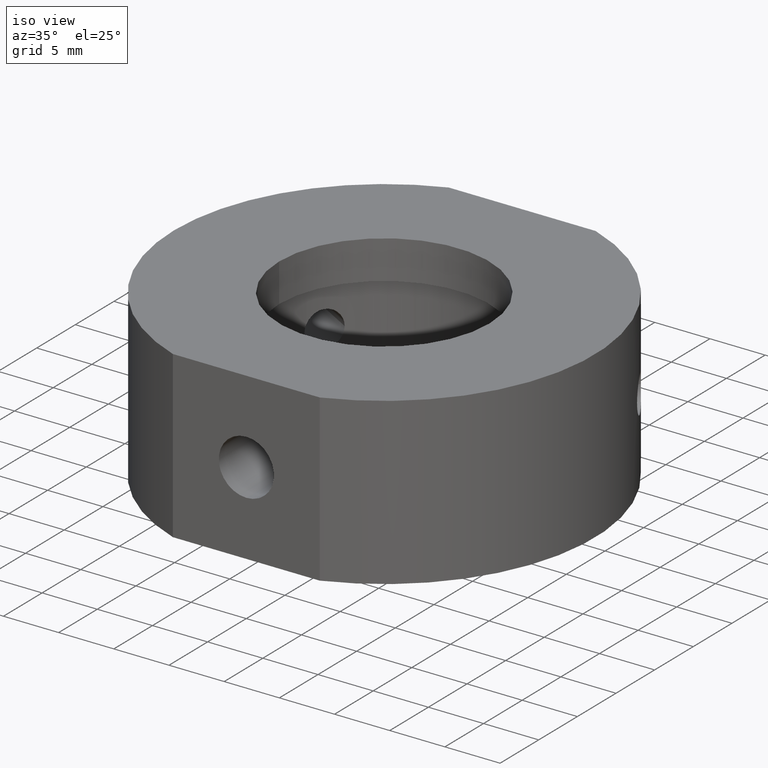
[diagram: clean part render]
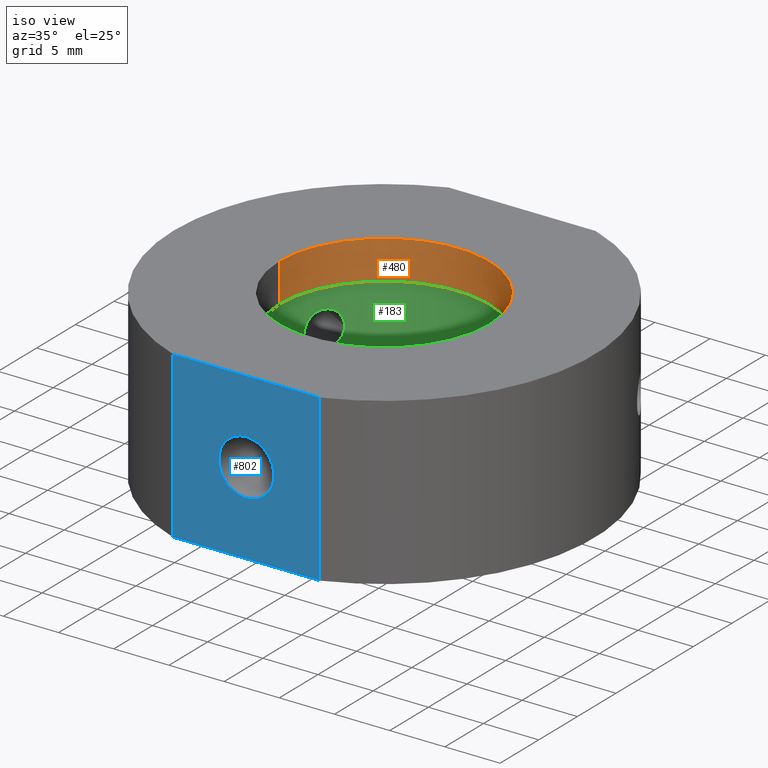
[diagram: same view with three faces highlighted in distinct colors, each labeled with its STEP entity id]
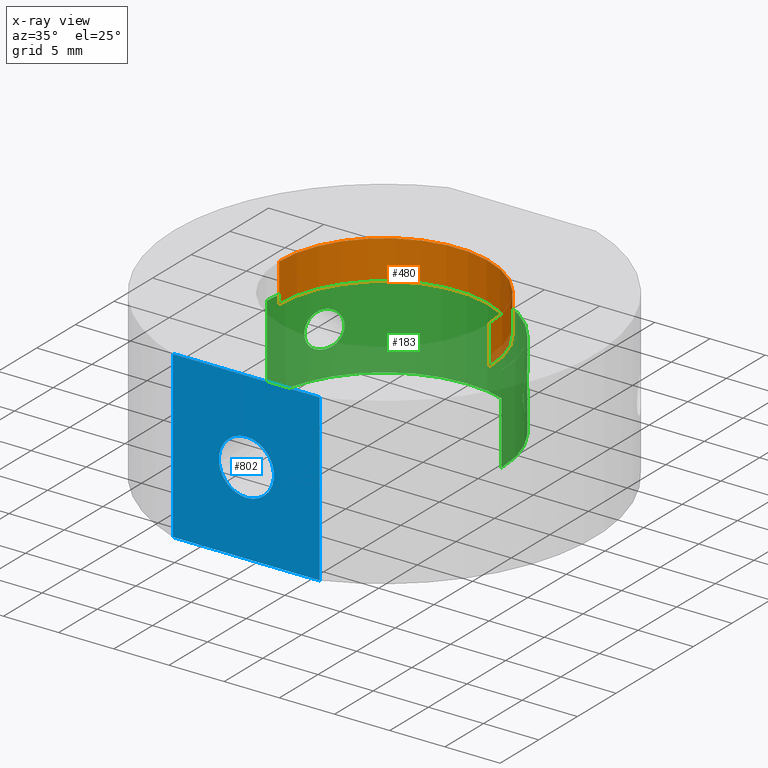
[diagram: x-ray of the same camera — body ghosted, the three highlighted faces saturated]
A machine part, iso view with three faces highlighted in distinct colors.
The next image is the same camera in x-ray (body ghosted, the three faces saturated) — at least one of them is partly hidden behind the body in this view.
Their STEP definitions:

[orange] entity #480 — the highlighted cylindrical surface (partial cylindrical patch) has radius 9.525 mm, axis along (-0, -0, -1).
#39 = CIRCLE ( 'NONE', #323, 9.524999999999995000 ) ;
#48 = DIRECTION ( 'NONE',  ( -1.000000000000000000, 0.0000000000000000000, 0.0000000000000000000 ) ) ;
#61 = DIRECTION ( 'NONE',  ( -1.000000000000000000, 0.0000000000000000000, 9.106159978880882300E-017 ) ) ;
#62 = EDGE_CURVE ( 'NONE', #676, #553, #537, .T. ) ;
#71 = CARTESIAN_POINT ( 'NONE',  ( 4.829892851045828800E-015, 0.0000000000000000000, 7.500000000000000000 ) ) ;
#94 = DIRECTION ( 'NONE',  ( -1.224646799147350500E-016, -0.0000000000000000000, -1.000000000000000000 ) ) ;
#108 = VERTEX_POINT ( 'NONE', #145 ) ;
#129 = CYLINDRICAL_SURFACE ( 'NONE', #1102, 9.524999999999995000 ) ;
#139 = DIRECTION ( 'NONE',  ( -1.224646799147350500E-016, -0.0000000000000000000, -1.000000000000000000 ) ) ;
#145 = CARTESIAN_POINT ( 'NONE',  ( 9.525000000000000400, 1.166476076187853200E-015, 7.499999999999999100 ) ) ;
#154 = CARTESIAN_POINT ( 'NONE',  ( -9.524999999999989700, 0.0000000000000000000, 3.999999999999997300 ) ) ;
#157 = VECTOR ( 'NONE', #94, 1000.000000000000000 ) ;
#211 = EDGE_LOOP ( 'NONE', ( #855, #241, #357, #788 ) ) ;
#225 = EDGE_CURVE ( 'NONE', #469, #676, #888, .T. ) ;
#241 = ORIENTED_EDGE ( 'NONE', *, *, #714, .F. ) ;
#247 = DIRECTION ( 'NONE',  ( -1.000000000000000000, 0.0000000000000000000, 9.106159978880882300E-017 ) ) ;
#323 = AXIS2_PLACEMENT_3D ( 'NONE', #71, #772, #247 ) ;
#357 = ORIENTED_EDGE ( 'NONE', *, *, #225, .T. ) ;
#469 = VERTEX_POINT ( 'NONE', #832 ) ;
#480 = ADVANCED_FACE ( 'NONE', ( #667 ), #129, .F. ) ;
#526 = CARTESIAN_POINT ( 'NONE',  ( -9.524999999999995000, 0.0000000000000000000, -31.93906810035839800 ) ) ;
#537 = CIRCLE ( 'NONE', #1061, 9.524999999999995000 ) ;
#553 = VERTEX_POINT ( 'NONE', #778 ) ;
#570 = CARTESIAN_POINT ( 'NONE',  ( 0.0000000000000000000, 0.0000000000000000000, -31.93906810035839800 ) ) ;
#620 = CARTESIAN_POINT ( 'NONE',  ( 9.524999999999995000, 1.166476076187853200E-015, -31.93906810035839800 ) ) ;
#649 = VECTOR ( 'NONE', #711, 1000.000000000000000 ) ;
#662 = CARTESIAN_POINT ( 'NONE',  ( 4.401266471344255700E-015, 0.0000000000000000000, 3.999999999999996400 ) ) ;
#667 = FACE_OUTER_BOUND ( 'NONE', #211, .T. ) ;
#676 = VERTEX_POINT ( 'NONE', #154 ) ;
#711 = DIRECTION ( 'NONE',  ( -1.224646799147350500E-016, -0.0000000000000000000, -1.000000000000000000 ) ) ;
#714 = EDGE_CURVE ( 'NONE', #469, #108, #39, .T. ) ;
#772 = DIRECTION ( 'NONE',  ( -1.224646799147350500E-016, -0.0000000000000000000, -1.000000000000000000 ) ) ;
#777 = LINE ( 'NONE', #620, #157 ) ;
#778 = CARTESIAN_POINT ( 'NONE',  ( 9.525000000000000400, 1.166476076187853200E-015, 3.999999999999995600 ) ) ;
#788 = ORIENTED_EDGE ( 'NONE', *, *, #62, .T. ) ;
#832 = CARTESIAN_POINT ( 'NONE',  ( -9.524999999999989700, 0.0000000000000000000, 7.500000000000000900 ) ) ;
#855 = ORIENTED_EDGE ( 'NONE', *, *, #980, .F. ) ;
#888 = LINE ( 'NONE', #526, #649 ) ;
#980 = EDGE_CURVE ( 'NONE', #108, #553, #777, .T. ) ;
#1061 = AXIS2_PLACEMENT_3D ( 'NONE', #662, #139, #61 ) ;
#1102 = AXIS2_PLACEMENT_3D ( 'NONE', #570, #1103, #48 ) ;
#1103 = DIRECTION ( 'NONE',  ( -1.224646799147350500E-016, -0.0000000000000000000, -1.000000000000000000 ) ) ;

[blue] entity #802 — the highlighted planar face has unit normal (-0, 1, 0).
#11 = FACE_OUTER_BOUND ( 'NONE', #612, .T. ) ;
#15 = ORIENTED_EDGE ( 'NONE', *, *, #410, .F. ) ;
#21 = DIRECTION ( 'NONE',  ( 0.0000000000000000000, -0.0000000000000000000, 1.000000000000000000 ) ) ;
#22 = CIRCLE ( 'NONE', #963, 2.499999999999999100 ) ;
#34 = ORIENTED_EDGE ( 'NONE', *, *, #877, .F. ) ;
#55 = DIRECTION ( 'NONE',  ( -1.224646799147350500E-016, -0.0000000000000000000, -1.000000000000000000 ) ) ;
#59 = DIRECTION ( 'NONE',  ( 1.000000000000000000, 0.0000000000000000000, -1.224646799147350500E-016 ) ) ;
#113 = DIRECTION ( 'NONE',  ( 0.0000000000000000000, 0.0000000000000000000, -1.000000000000000000 ) ) ;
#116 = VECTOR ( 'NONE', #59, 1000.000000000000000 ) ;
#133 = CARTESIAN_POINT ( 'NONE',  ( -6.654321903845666200, -17.84999999999999400, -31.93906810035839800 ) ) ;
#172 = VECTOR ( 'NONE', #55, 1000.000000000000000 ) ;
#222 = ORIENTED_EDGE ( 'NONE', *, *, #1107, .F. ) ;
#231 = VECTOR ( 'NONE', #244, 1000.000000000000000 ) ;
#236 = CARTESIAN_POINT ( 'NONE',  ( 19.05000000000000400, -17.85000000000000100, 7.499999999999995600 ) ) ;
#244 = DIRECTION ( 'NONE',  ( 1.224646799147350500E-016, 0.0000000000000000000, 1.000000000000000000 ) ) ;
#254 = CARTESIAN_POINT ( 'NONE',  ( 5.204170427930421300E-015, -17.85000000000000100, 0.0000000000000000000 ) ) ;
#266 = VERTEX_POINT ( 'NONE', #887 ) ;
#305 = CARTESIAN_POINT ( 'NONE',  ( 9.525000000000003900, -17.85000000000000100, -7.500000000000002700 ) ) ;
#344 = CARTESIAN_POINT ( 'NONE',  ( -6.654321903845663600, -17.84999999999999400, -7.500000000000000000 ) ) ;
#361 = LINE ( 'NONE', #496, #172 ) ;
#381 = VERTEX_POINT ( 'NONE', #1062 ) ;
#404 = VECTOR ( 'NONE', #825, 1000.000000000000000 ) ;
#410 = EDGE_CURVE ( 'NONE', #580, #266, #634, .T. ) ;
#427 = LINE ( 'NONE', #305, #404 ) ;
#471 = CARTESIAN_POINT ( 'NONE',  ( 5.204170427930421300E-015, -17.85000000000000100, 0.0000000000000000000 ) ) ;
#472 = FACE_BOUND ( 'NONE', #536, .T. ) ;
#489 = VERTEX_POINT ( 'NONE', #920 ) ;
#496 = CARTESIAN_POINT ( 'NONE',  ( 6.654321903845666200, -17.84999999999999400, -31.93906810035839800 ) ) ;
#525 = EDGE_CURVE ( 'NONE', #674, #489, #361, .T. ) ;
#536 = EDGE_LOOP ( 'NONE', ( #629, #647 ) ) ;
#539 = PLANE ( 'NONE',  #1077 ) ;
#580 = VERTEX_POINT ( 'NONE', #344 ) ;
#593 = CARTESIAN_POINT ( 'NONE',  ( 6.654321903845655600, -17.85000000000000100, 7.499999999999992000 ) ) ;
#612 = EDGE_LOOP ( 'NONE', ( #34, #15, #222, #1113 ) ) ;
#629 = ORIENTED_EDGE ( 'NONE', *, *, #770, .F. ) ;
#634 = LINE ( 'NONE', #133, #231 ) ;
#647 = ORIENTED_EDGE ( 'NONE', *, *, #724, .F. ) ;
#659 = VERTEX_POINT ( 'NONE', #685 ) ;
#674 = VERTEX_POINT ( 'NONE', #593 ) ;
#685 = CARTESIAN_POINT ( 'NONE',  ( 5.510332127717259900E-015, -17.85000000000000100, 2.499999999999999100 ) ) ;
#688 = DIRECTION ( 'NONE',  ( 0.0000000000000000000, 0.0000000000000000000, -1.000000000000000000 ) ) ;
#706 = CIRCLE ( 'NONE', #790, 2.499999999999999100 ) ;
#724 = EDGE_CURVE ( 'NONE', #659, #381, #706, .T. ) ;
#740 = DIRECTION ( 'NONE',  ( -0.0000000000000000000, -1.000000000000000000, -0.0000000000000000000 ) ) ;
#770 = EDGE_CURVE ( 'NONE', #381, #659, #22, .T. ) ;
#790 = AXIS2_PLACEMENT_3D ( 'NONE', #254, #1030, #688 ) ;
#802 = ADVANCED_FACE ( 'NONE', ( #472, #11 ), #539, .F. ) ;
#825 = DIRECTION ( 'NONE',  ( -1.000000000000000000, -0.0000000000000000000, 1.224646799147350500E-016 ) ) ;
#877 = EDGE_CURVE ( 'NONE', #266, #674, #926, .T. ) ;
#887 = CARTESIAN_POINT ( 'NONE',  ( -6.654321903845645800, -17.85000000000000100, 7.499999999999998200 ) ) ;
#913 = DIRECTION ( 'NONE',  ( -0.0000000000000000000, 1.000000000000000000, 0.0000000000000000000 ) ) ;
#920 = CARTESIAN_POINT ( 'NONE',  ( 6.654321903845652900, -17.85000000000000100, -7.500000000000004400 ) ) ;
#926 = LINE ( 'NONE', #236, #116 ) ;
#963 = AXIS2_PLACEMENT_3D ( 'NONE', #471, #740, #113 ) ;
#1030 = DIRECTION ( 'NONE',  ( -0.0000000000000000000, -1.000000000000000000, -0.0000000000000000000 ) ) ;
#1062 = CARTESIAN_POINT ( 'NONE',  ( 5.204170427930421300E-015, -17.85000000000000100, -2.499999999999999100 ) ) ;
#1068 = CARTESIAN_POINT ( 'NONE',  ( -33.15197265346817100, -17.85000000000000100, -41.50000000000002100 ) ) ;
#1077 = AXIS2_PLACEMENT_3D ( 'NONE', #1068, #913, #21 ) ;
#1107 = EDGE_CURVE ( 'NONE', #489, #580, #427, .T. ) ;
#1113 = ORIENTED_EDGE ( 'NONE', *, *, #525, .F. ) ;

[green] entity #183 — the highlighted cylindrical surface (partial cylindrical patch) has radius 10.625 mm, axis along (-0, -0, -1).
#7 = AXIS2_PLACEMENT_3D ( 'NONE', #1049, #173, #434 ) ;
#18 = ORIENTED_EDGE ( 'NONE', *, *, #600, .T. ) ;
#28 = CARTESIAN_POINT ( 'NONE',  ( 9.408721648758369600, 4.937388183391979300, 1.597053437344391200 ) ) ;
#44 = CARTESIAN_POINT ( 'NONE',  ( -9.790382599317414500, 4.130667276373844600, -1.015725024565628400 ) ) ;
#58 = CARTESIAN_POINT ( 'NONE',  ( -9.545652867666232700, 4.667026077174357500, -1.483143684996386800 ) ) ;
#60 = CARTESIAN_POINT ( 'NONE',  ( 8.396295029788625200, 6.511513261301738400, -0.8319949395180651400 ) ) ;
#70 = B_SPLINE_CURVE_WITH_KNOTS ( 'NONE', 3,
 ( #652, #936, #408, #582, #669, #763, #851, #998, #565, #1021, #210, #914, #338, #342, #942, #833, #574, #848, #477, #328, #150, #169, #1080, #977, #180, #661, #228, #843 ),
 .UNSPECIFIED., .F., .F.,
 ( 4, 2, 2, 2, 2, 2, 2, 2, 2, 2, 2, 2, 2, 4 ),
 ( 0.0000000000000000000, 0.0003229041421870317900, 0.0006458082843740635700, 0.0009687124265610946500, 0.001291616568748125600, 0.001937424853122186700, 0.002583233137496247300, 0.002906137279683278700, 0.003229041421870310600, 0.003874849706244372100, 0.004197753848431400900, 0.004520657990618429300, 0.004843562132805459400, 0.005166466274992487700 ),
 .UNSPECIFIED. ) ;
#73 = CARTESIAN_POINT ( 'NONE',  ( 9.899321566127271800, 3.860177084601793300, -0.4328772118626595400 ) ) ;
#78 = CARTESIAN_POINT ( 'NONE',  ( 8.657940699341251500, 6.159447993709985500, -1.312847755124678900 ) ) ;
#96 = LINE ( 'NONE', #1036, #830 ) ;
#103 = CARTESIAN_POINT ( 'NONE',  ( 8.264889644544624000, 6.676992149426202300, 0.0000000000000000000 ) ) ;
#115 = CARTESIAN_POINT ( 'NONE',  ( 9.760308048219334500, 4.199165743934064400, 1.089886059746032000 ) ) ;
#117 = VERTEX_POINT ( 'NONE', #946 ) ;
#125 = VERTEX_POINT ( 'NONE', #162 ) ;
#127 = CIRCLE ( 'NONE', #1050, 10.62499999999999800 ) ;
#130 = CARTESIAN_POINT ( 'NONE',  ( 9.852979203758980700, 3.976326669859315400, 0.7315848252391022900 ) ) ;
#132 = CARTESIAN_POINT ( 'NONE',  ( -8.813399571658404600, 5.935034697431140300, -1.482108127127889300 ) ) ;
#144 = CARTESIAN_POINT ( 'NONE',  ( -9.663208785512516400, 4.418272593233827400, -1.312847755124678400 ) ) ;
#150 = CARTESIAN_POINT ( 'NONE',  ( -8.475427855554833900, 6.407915051914903500, 1.006713938914052700 ) ) ;
#152 = VERTEX_POINT ( 'NONE', #952 ) ;
#159 = ORIENTED_EDGE ( 'NONE', *, *, #520, .T. ) ;
#160 = CARTESIAN_POINT ( 'NONE',  ( 9.147538033772580200, 5.406020823340996100, -1.650069101162330500 ) ) ;
#161 = EDGE_CURVE ( 'NONE', #703, #937, #949, .T. ) ;
#162 = CARTESIAN_POINT ( 'NONE',  ( 8.264889644544624000, 6.676992149426202300, 0.0000000000000000000 ) ) ;
#165 = EDGE_LOOP ( 'NONE', ( #883, #159 ) ) ;
#168 = DIRECTION ( 'NONE',  ( -1.224646799147350500E-016, -0.0000000000000000000, -1.000000000000000000 ) ) ;
#169 = CARTESIAN_POINT ( 'NONE',  ( -8.402236390566262300, 6.503589492297029700, 0.8281499607456331800 ) ) ;
#173 = DIRECTION ( 'NONE',  ( -1.224646799147350500E-016, -0.0000000000000000000, -1.000000000000000000 ) ) ;
#178 = ORIENTED_EDGE ( 'NONE', *, *, #972, .T. ) ;
#180 = CARTESIAN_POINT ( 'NONE',  ( -8.298572109574376300, 6.635117476280541400, 0.4290589011333260100 ) ) ;
#183 = ADVANCED_FACE ( 'NONE', ( #476, #1085, #849 ), #459, .F. ) ;
#185 = CARTESIAN_POINT ( 'NONE',  ( 8.370307084235973200, 6.544489149409961300, 0.7323026947948619900 ) ) ;
#202 = CARTESIAN_POINT ( 'NONE',  ( 10.62500000000000400, 1.301187224094062900E-015, 3.999999999999994700 ) ) ;
#210 = CARTESIAN_POINT ( 'NONE',  ( -9.590284607694789200, 4.577838953286308400, 1.441789092626954500 ) ) ;
#223 = CARTESIAN_POINT ( 'NONE',  ( -9.837283416260833100, 4.015648162815192100, -0.8319949395180639100 ) ) ;
#228 = CARTESIAN_POINT ( 'NONE',  ( -8.264889644544620500, 6.676992149426196100, 0.1077717452684866500 ) ) ;
#246 = CARTESIAN_POINT ( 'NONE',  ( 9.546590606146619300, 4.665110574043597000, -1.482108127127889100 ) ) ;
#261 = DIRECTION ( 'NONE',  ( -1.224646799147350500E-016, -0.0000000000000000000, -1.000000000000000000 ) ) ;
#270 = CARTESIAN_POINT ( 'NONE',  ( 3.421549032026375300E-015, 0.0000000000000000000, -4.000000000000003600 ) ) ;
#273 = CARTESIAN_POINT ( 'NONE',  ( 8.759667131827248100, 6.016510623143497900, 1.441789092626954500 ) ) ;
#276 = DIRECTION ( 'NONE',  ( -1.000000000000000000, 0.0000000000000000000, 1.632680918566407000E-016 ) ) ;
#281 = CARTESIAN_POINT ( 'NONE',  ( 8.298350260095917400, 6.635394480210256200, 0.4276598729915332400 ) ) ;
#289 = CARTESIAN_POINT ( 'NONE',  ( 9.914889644544629700, 3.819108316937581500, 0.1077717452684867500 ) ) ;
#307 = ORIENTED_EDGE ( 'NONE', *, *, #161, .F. ) ;
#311 = CARTESIAN_POINT ( 'NONE',  ( -8.759961905647371000, 6.013464420101019700, -1.431354336114996100 ) ) ;
#328 = CARTESIAN_POINT ( 'NONE',  ( -8.516738233057878900, 6.353091846552698200, 1.089886059746033600 ) ) ;
#338 = CARTESIAN_POINT ( 'NONE',  ( -9.309619983344026300, 5.125240059124182700, 1.649919087189089000 ) ) ;
#340 = CARTESIAN_POINT ( 'NONE',  ( 8.924681890518817400, 5.766339760025911000, -1.565798034911170600 ) ) ;
#342 = CARTESIAN_POINT ( 'NONE',  ( -9.147933608077661200, 5.405326717848382100, 1.650040282616060100 ) ) ;
#351 = LINE ( 'NONE', #759, #754 ) ;
#375 = CARTESIAN_POINT ( 'NONE',  ( 9.895466346340198200, 3.869215523888259500, 0.4290589011333242900 ) ) ;
#384 = CARTESIAN_POINT ( 'NONE',  ( -8.264889644544618700, 6.676992149426195200, 2.020667629640079200E-016 ) ) ;
#389 = CARTESIAN_POINT ( 'NONE',  ( -8.395592514726919500, 6.512415905079961900, -0.8300547300622680400 ) ) ;
#395 = CARTESIAN_POINT ( 'NONE',  ( 8.293083986714039600, 6.642464389717774000, -0.4352288827705092500 ) ) ;
#407 = CARTESIAN_POINT ( 'NONE',  ( -9.914889644544620900, 3.819108316937574800, -0.2183411603929330500 ) ) ;
#408 = CARTESIAN_POINT ( 'NONE',  ( -9.910998151046881000, 3.829254835759036800, 0.2165365344758971600 ) ) ;
#414 = CARTESIAN_POINT ( 'NONE',  ( 8.472454095579474000, 6.413386405591167800, -1.015725024565627500 ) ) ;
#422 = CARTESIAN_POINT ( 'NONE',  ( 9.914889644544626200, 3.819108316937581500, 2.020667629640079200E-016 ) ) ;
#425 = CARTESIAN_POINT ( 'NONE',  ( -9.914889644544620900, 3.819108316937574800, 0.0000000000000000000 ) ) ;
#434 = DIRECTION ( 'NONE',  ( -1.000000000000000000, 0.0000000000000000000, 1.632680918566407000E-016 ) ) ;
#449 = CARTESIAN_POINT ( 'NONE',  ( 9.093398083367164400, 5.499747375593187800, 1.649919087189089200 ) ) ;
#459 = CYLINDRICAL_SURFACE ( 'NONE', #552, 10.62499999999999800 ) ;
#460 = CARTESIAN_POINT ( 'NONE',  ( 9.308415512058662200, 5.123987294303028700, 1.639266421134856900 ) ) ;
#476 = FACE_OUTER_BOUND ( 'NONE', #1019, .T. ) ;
#477 = CARTESIAN_POINT ( 'NONE',  ( -8.654106969626676400, 6.166115643005441300, 1.320486077418240100 ) ) ;
#478 = CARTESIAN_POINT ( 'NONE',  ( -9.307715972772049500, 5.125251968317773100, -1.639436076919601500 ) ) ;
#485 = CARTESIAN_POINT ( 'NONE',  ( -8.657082681015621600, 6.160649833765376100, -1.311701115742790200 ) ) ;
#491 = CARTESIAN_POINT ( 'NONE',  ( -8.264889644544624000, 6.676992149426197000, -0.2154902680575378500 ) ) ;
#504 = CARTESIAN_POINT ( 'NONE',  ( 9.837713871172500300, 4.014588445036107300, -0.8300547300622674900 ) ) ;
#511 = CARTESIAN_POINT ( 'NONE',  ( 9.412181656122468700, 4.933716342660186000, -1.606719420421710100 ) ) ;
#515 = B_SPLINE_CURVE_WITH_KNOTS ( 'NONE', 3,
 ( #103, #1070, #709, #281, #1065, #185, #540, #723, #795, #890, #273, #969, #449, #901, #460, #28, #1055, #744, #638, #115, #993, #1076, #130, #733, #375, #750, #289, #987 ),
 .UNSPECIFIED., .F., .F.,
 ( 4, 2, 2, 2, 2, 2, 2, 2, 2, 2, 2, 2, 2, 4 ),
 ( 0.0000000000000000000, 0.0003229041421870308600, 0.0006458082843740617300, 0.0009687124265610924800, 0.001291616568748123000, 0.001937424853122185800, 0.002583233137496249100, 0.002906137279683280500, 0.003229041421870312300, 0.003874849706244369900, 0.004197753848431400000, 0.004520657990618431000, 0.004843562132805462000, 0.005166466274992491200 ),
 .UNSPECIFIED. ) ;
#516 = CARTESIAN_POINT ( 'NONE',  ( 9.698825484902892300, 4.339268876648640500, -1.242055349031661000 ) ) ;
#520 = EDGE_CURVE ( 'NONE', #152, #732, #867, .T. ) ;
#540 = CARTESIAN_POINT ( 'NONE',  ( 8.401814917519665500, 6.504135407371558500, 0.8270155666601518600 ) ) ;
#552 = AXIS2_PLACEMENT_3D ( 'NONE', #695, #168, #613 ) ;
#564 = CARTESIAN_POINT ( 'NONE',  ( -8.607329823480265300, 6.229794818473592100, -1.242055349031661300 ) ) ;
#565 = CARTESIAN_POINT ( 'NONE',  ( -9.759871586961660100, 4.200164113074667000, 1.090996938119523700 ) ) ;
#573 = CARTESIAN_POINT ( 'NONE',  ( -9.698196006294754300, 4.340675508578029500, -1.243388288188127300 ) ) ;
#574 = CARTESIAN_POINT ( 'NONE',  ( -8.924715752496053900, 5.766290590079981900, 1.565832410573470900 ) ) ;
#578 = CARTESIAN_POINT ( 'NONE',  ( -9.899084898586068000, 3.860789213353494000, -0.4352288827705074200 ) ) ;
#582 = CARTESIAN_POINT ( 'NONE',  ( -9.895595314041042200, 3.868884894639232500, 0.4276598729915329600 ) ) ;
#587 = CARTESIAN_POINT ( 'NONE',  ( 8.264889644544624000, 6.676992149426202300, 0.0000000000000000000 ) ) ;
#591 = ORIENTED_EDGE ( 'NONE', *, *, #684, .T. ) ;
#600 = EDGE_CURVE ( 'NONE', #703, #824, #96, .T. ) ;
#609 = ORIENTED_EDGE ( 'NONE', *, *, #1045, .T. ) ;
#613 = DIRECTION ( 'NONE',  ( -1.000000000000000000, 0.0000000000000000000, 0.0000000000000000000 ) ) ;
#638 = CARTESIAN_POINT ( 'NONE',  ( 9.667066274328631100, 4.411618661262041400, 1.320486077418239200 ) ) ;
#642 = EDGE_LOOP ( 'NONE', ( #609, #591 ) ) ;
#651 = CARTESIAN_POINT ( 'NONE',  ( -8.978814515871343700, 5.684330247905935900, -1.606719420421709700 ) ) ;
#652 = CARTESIAN_POINT ( 'NONE',  ( -9.914889644544620900, 3.819108316937574800, 0.0000000000000000000 ) ) ;
#656 = CARTESIAN_POINT ( 'NONE',  ( -8.292672201435268100, 6.642975414196552500, -0.4328772118626597600 ) ) ;
#661 = CARTESIAN_POINT ( 'NONE',  ( -8.271776433950114100, 6.668492903842424500, 0.2172534870277932100 ) ) ;
#669 = CARTESIAN_POINT ( 'NONE',  ( -9.883889688273736600, 3.898859261526564300, 0.5325508668010604500 ) ) ;
#670 = CARTESIAN_POINT ( 'NONE',  ( 8.264889644544624000, 6.676992149426201500, -0.2183411603929333900 ) ) ;
#683 = CARTESIAN_POINT ( 'NONE',  ( 9.914889644544626200, 3.819108316937581500, 2.020667629640079200E-016 ) ) ;
#684 = EDGE_CURVE ( 'NONE', #731, #125, #939, .T. ) ;
#691 = CARTESIAN_POINT ( 'NONE',  ( 9.587793905384982600, 4.579617336424153300, -1.431354336114995400 ) ) ;
#695 = CARTESIAN_POINT ( 'NONE',  ( 0.0000000000000000000, 0.0000000000000000000, -31.93906810035839800 ) ) ;
#703 = VERTEX_POINT ( 'NONE', #1117 ) ;
#709 = CARTESIAN_POINT ( 'NONE',  ( 8.271731040855112100, 6.668548757787760900, 0.2165365344758973500 ) ) ;
#723 = CARTESIAN_POINT ( 'NONE',  ( 8.475199196862199400, 6.408218931901953600, 1.006261281875740800 ) ) ;
#731 = VERTEX_POINT ( 'NONE', #683 ) ;
#732 = VERTEX_POINT ( 'NONE', #425 ) ;
#733 = CARTESIAN_POINT ( 'NONE',  ( 9.883966855957609700, 3.898662868917088400, 0.5319231617382960100 ) ) ;
#744 = CARTESIAN_POINT ( 'NONE',  ( 9.590632273652628800, 4.577175037067918100, 1.441590304951942700 ) ) ;
#750 = CARTESIAN_POINT ( 'NONE',  ( 9.910972476658825400, 3.829322074305138400, 0.2172534870277916800 ) ) ;
#754 = VECTOR ( 'NONE', #930, 1000.000000000000000 ) ;
#759 = CARTESIAN_POINT ( 'NONE',  ( 10.62499999999999800, 1.301187224094062500E-015, -31.93906810035839800 ) ) ;
#763 = CARTESIAN_POINT ( 'NONE',  ( -9.852847400298580600, 3.976653997720317200, 0.7323026947948606500 ) ) ;
#795 = CARTESIAN_POINT ( 'NONE',  ( 8.517384615467170400, 6.352214675445493300, 1.090996938119523500 ) ) ;
#814 = DIRECTION ( 'NONE',  ( -1.224646799147350500E-016, -0.0000000000000000000, -1.000000000000000000 ) ) ;
#824 = VERTEX_POINT ( 'NONE', #1063 ) ;
#830 = VECTOR ( 'NONE', #261, 1000.000000000000000 ) ;
#833 = CARTESIAN_POINT ( 'NONE',  ( -8.980264419541683200, 5.679497873265450600, 1.597053437344391200 ) ) ;
#843 = CARTESIAN_POINT ( 'NONE',  ( -8.264889644544618700, 6.676992149426195200, 2.020667629640079200E-016 ) ) ;
#848 = CARTESIAN_POINT ( 'NONE',  ( -8.759265996495043900, 6.017143668804204800, 1.441590304951942300 ) ) ;
#849 = FACE_BOUND ( 'NONE', #642, .T. ) ;
#851 = CARTESIAN_POINT ( 'NONE',  ( -9.833653951197407000, 4.024117452781400300, 0.8270155666601511900 ) ) ;
#858 = CARTESIAN_POINT ( 'NONE',  ( 9.914889644544624400, 3.819108316937581000, -0.2154902680575376800 ) ) ;
#865 = CARTESIAN_POINT ( 'NONE',  ( 9.092456391745365400, 5.498092499471989700, -1.639436076919601900 ) ) ;
#867 = B_SPLINE_CURVE_WITH_KNOTS ( 'NONE', 3,
 ( #384, #491, #656, #389, #1010, #564, #485, #311, #132, #651, #996, #1017, #478, #1007, #1094, #58, #1001, #144, #573, #44, #223, #578, #407, #1088 ),
 .UNSPECIFIED., .F., .F.,
 ( 4, 2, 2, 2, 2, 2, 2, 2, 2, 2, 2, 4 ),
 ( 0.005166466274992487700, 0.005812115094944552700, 0.006457763914896616800, 0.006780588324872650200, 0.007103412734848682700, 0.007749061554800744200, 0.008071885964776776700, 0.008394710374752808300, 0.008717534784728839900, 0.009040359194704871600, 0.009686008014656933100, 0.01033165683460899500 ),
 .UNSPECIFIED. ) ;
#871 = EDGE_CURVE ( 'NONE', #937, #117, #351, .T. ) ;
#883 = ORIENTED_EDGE ( 'NONE', *, *, #894, .T. ) ;
#890 = CARTESIAN_POINT ( 'NONE',  ( 8.653200088514228800, 6.167344737494806500, 1.318911991052339700 ) ) ;
#894 = EDGE_CURVE ( 'NONE', #732, #152, #70, .T. ) ;
#901 = CARTESIAN_POINT ( 'NONE',  ( 9.255117057450249300, 5.219679537804595700, 1.650040282616060300 ) ) ;
#914 = CARTESIAN_POINT ( 'NONE',  ( -9.412272816450951000, 4.933486471807896100, 1.606443895870792300 ) ) ;
#930 = DIRECTION ( 'NONE',  ( -1.224646799147350500E-016, -0.0000000000000000000, -1.000000000000000000 ) ) ;
#936 = CARTESIAN_POINT ( 'NONE',  ( -9.914889644544620900, 3.819108316937574800, 0.1091975434974627000 ) ) ;
#937 = VERTEX_POINT ( 'NONE', #202 ) ;
#939 = B_SPLINE_CURVE_WITH_KNOTS ( 'NONE', 3,
 ( #422, #858, #73, #504, #1115, #516, #1029, #691, #246, #511, #956, #160, #865, #953, #340, #1128, #947, #78, #1022, #414, #60, #395, #670, #587 ),
 .UNSPECIFIED., .F., .F.,
 ( 4, 2, 2, 2, 2, 2, 2, 2, 2, 2, 2, 4 ),
 ( 0.005166466274992491200, 0.005812115094944555300, 0.006457763914896619400, 0.006780588324872651900, 0.007103412734848683600, 0.007749061554800751100, 0.008071885964776781900, 0.008394710374752813500, 0.008717534784728843400, 0.009040359194704875000, 0.009686008014656938300, 0.01033165683460900200 ),
 .UNSPECIFIED. ) ;
#942 = CARTESIAN_POINT ( 'NONE',  ( -9.091710921564383000, 5.499330655272507000, 1.639266421134856700 ) ) ;
#946 = CARTESIAN_POINT ( 'NONE',  ( 10.62500000000000200, 1.301187224094062500E-015, -4.000000000000005300 ) ) ;
#947 = CARTESIAN_POINT ( 'NONE',  ( 8.761112947352291500, 6.011791468793943800, -1.432541399395076600 ) ) ;
#949 = CIRCLE ( 'NONE', #7, 10.62499999999999800 ) ;
#952 = CARTESIAN_POINT ( 'NONE',  ( -8.264889644544618700, 6.676992149426195200, 2.020667629640079200E-016 ) ) ;
#953 = CARTESIAN_POINT ( 'NONE',  ( 8.981341396881630200, 5.677789277632768100, -1.597572242914054400 ) ) ;
#956 = CARTESIAN_POINT ( 'NONE',  ( 9.311059701152034400, 5.122728289537915800, -1.649860793928037900 ) ) ;
#969 = CARTESIAN_POINT ( 'NONE',  ( 8.978661022037927700, 5.684524130492370400, 1.606443895870793200 ) ) ;
#972 = EDGE_CURVE ( 'NONE', #824, #117, #127, .T. ) ;
#977 = CARTESIAN_POINT ( 'NONE',  ( -8.318324513252058200, 6.610434952964235200, 0.5319231617382961200 ) ) ;
#987 = CARTESIAN_POINT ( 'NONE',  ( 9.914889644544626200, 3.819108316937581500, 2.020667629640079200E-016 ) ) ;
#993 = CARTESIAN_POINT ( 'NONE',  ( 9.787131148028363400, 4.135978304895395800, 1.006713938914051400 ) ) ;
#996 = CARTESIAN_POINT ( 'NONE',  ( -9.091942686000999500, 5.502250092582332100, -1.649860793928038300 ) ) ;
#998 = CARTESIAN_POINT ( 'NONE',  ( -9.787279986470530000, 4.135628340665255600, 1.006261281875740400 ) ) ;
#1001 = CARTESIAN_POINT ( 'NONE',  ( -9.586920607906213500, 4.581450643434957100, -1.432541399395076400 ) ) ;
#1007 = CARTESIAN_POINT ( 'NONE',  ( -9.407780450205631700, 4.939175170944011500, -1.597572242914053800 ) ) ;
#1010 = CARTESIAN_POINT ( 'NONE',  ( -8.471517711109282100, 6.414623399091716700, -1.013785661980909400 ) ) ;
#1017 = CARTESIAN_POINT ( 'NONE',  ( -9.255520383287207100, 5.218989907660997600, -1.650069101162330300 ) ) ;
#1019 = EDGE_LOOP ( 'NONE', ( #1092, #307, #18, #178 ) ) ;
#1021 = CARTESIAN_POINT ( 'NONE',  ( -9.667677260823838400, 4.410218731935763100, 1.318911991052340100 ) ) ;
#1022 = CARTESIAN_POINT ( 'NONE',  ( 8.608233263160833800, 6.228546358043118400, -1.243388288188126900 ) ) ;
#1029 = CARTESIAN_POINT ( 'NONE',  ( 9.663820600368971700, 4.416928607539234400, -1.311701115742790500 ) ) ;
#1036 = CARTESIAN_POINT ( 'NONE',  ( -10.62499999999999800, 0.0000000000000000000, -31.93906810035839800 ) ) ;
#1045 = EDGE_CURVE ( 'NONE', #125, #731, #515, .T. ) ;
#1049 = CARTESIAN_POINT ( 'NONE',  ( 4.401266471344255700E-015, 0.0000000000000000000, 3.999999999999996400 ) ) ;
#1050 = AXIS2_PLACEMENT_3D ( 'NONE', #270, #814, #276 ) ;
#1055 = CARTESIAN_POINT ( 'NONE',  ( 9.456112012860410600, 4.845885268176839000, 1.565832410573470700 ) ) ;
#1063 = CARTESIAN_POINT ( 'NONE',  ( -10.62499999999999600, 0.0000000000000000000, -4.000000000000001800 ) ) ;
#1065 = CARTESIAN_POINT ( 'NONE',  ( 8.318456010399051700, 6.610269927484918800, 0.5325508668010614500 ) ) ;
#1070 = CARTESIAN_POINT ( 'NONE',  ( 8.264889644544624000, 6.676992149426205000, 0.1091975434974627600 ) ) ;
#1076 = CARTESIAN_POINT ( 'NONE',  ( 9.833391911397866300, 4.024755416684036500, 0.8281499607456323000 ) ) ;
#1080 = CARTESIAN_POINT ( 'NONE',  ( -8.370089511723165300, 6.544766958485470600, 0.7315848252391029500 ) ) ;
#1085 = FACE_BOUND ( 'NONE', #165, .T. ) ;
#1088 = CARTESIAN_POINT ( 'NONE',  ( -9.914889644544620900, 3.819108316937574800, 0.0000000000000000000 ) ) ;
#1092 = ORIENTED_EDGE ( 'NONE', *, *, #871, .F. ) ;
#1094 = CARTESIAN_POINT ( 'NONE',  ( -9.456137664294056200, 4.845831357871358800, -1.565798034911171100 ) ) ;
#1115 = CARTESIAN_POINT ( 'NONE',  ( 9.790985674878115200, 4.129237846884680400, -1.013785661980909100 ) ) ;
#1117 = CARTESIAN_POINT ( 'NONE',  ( -10.62499999999999500, 0.0000000000000000000, 3.999999999999998200 ) ) ;
#1128 = CARTESIAN_POINT ( 'NONE',  ( 8.814589576790490700, 5.933264840519640900, -1.483143684996386200 ) ) ;